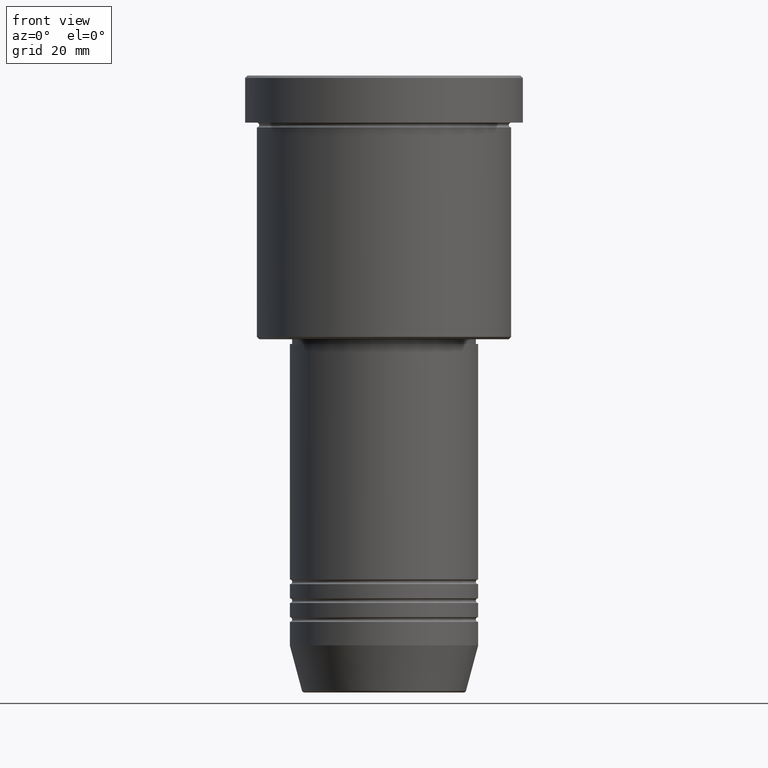
[diagram: clean part render]
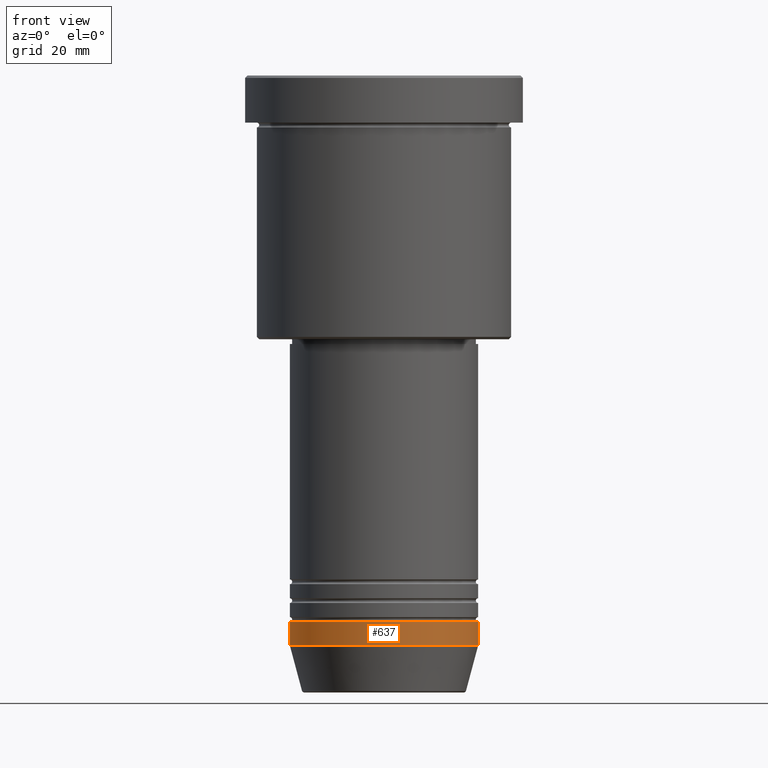
[diagram: same view with one face highlighted and labeled with its STEP entity id]
A machine part, front view. The second image highlights one B-rep face of the part: STEP entity #637.
In plain terms, the highlighted cylindrical surface (partial cylindrical patch) has radius 20 mm, axis along (-0, -0, 1).
Its self-contained STEP definition (entity closure, byte-faithful):
#18 = AXIS2_PLACEMENT_3D ( 'NONE', #717, #1182, #899 ) ;
#28 = EDGE_CURVE ( 'NONE', #321, #861, #110, .T. ) ;
#100 = CYLINDRICAL_SURFACE ( 'NONE', #814, 20.00000000000000000 ) ;
#106 = CARTESIAN_POINT ( 'NONE',  ( 20.00000000000000000, 0.000000000000000000, 0.000000000000000000 ) ) ;
#107 = CARTESIAN_POINT ( 'NONE',  ( -20.00000000000000000, 2.449293598294706513E-15, 0.000000000000000000 ) ) ;
#110 = CIRCLE ( 'NONE', #904, 20.00000000000000000 ) ;
#134 = EDGE_CURVE ( 'NONE', #671, #861, #301, .T. ) ;
#202 = CARTESIAN_POINT ( 'NONE',  ( 0.000000000000000000, 0.000000000000000000, -115.9999999999999858 ) ) ;
#223 = DIRECTION ( 'NONE',  ( -0.000000000000000000, -0.000000000000000000, 1.000000000000000000 ) ) ;
#301 = LINE ( 'NONE', #106, #926 ) ;
#321 = VERTEX_POINT ( 'NONE', #1175 ) ;
#355 = EDGE_CURVE ( 'NONE', #757, #671, #770, .T. ) ;
#465 = EDGE_CURVE ( 'NONE', #757, #321, #819, .T. ) ;
#470 = CARTESIAN_POINT ( 'NONE',  ( 20.00000000000000000, 0.000000000000000000, -121.0000000000000000 ) ) ;
#531 = CARTESIAN_POINT ( 'NONE',  ( -20.00000000000000000, 2.449293598294706513E-15, -121.0000000000000000 ) ) ;
#574 = DIRECTION ( 'NONE',  ( 1.000000000000000000, 0.000000000000000000, 0.000000000000000000 ) ) ;
#610 = ORIENTED_EDGE ( 'NONE', *, *, #134, .T. ) ;
#635 = ORIENTED_EDGE ( 'NONE', *, *, #465, .F. ) ;
#637 = ADVANCED_FACE ( 'NONE', ( #1002 ), #100, .T. ) ;
#667 = CARTESIAN_POINT ( 'NONE',  ( 20.00000000000000000, 0.000000000000000000, -115.9999999999999858 ) ) ;
#671 = VERTEX_POINT ( 'NONE', #470 ) ;
#717 = CARTESIAN_POINT ( 'NONE',  ( 0.000000000000000000, 0.000000000000000000, -121.0000000000000000 ) ) ;
#732 = CARTESIAN_POINT ( 'NONE',  ( 0.000000000000000000, 0.000000000000000000, 0.000000000000000000 ) ) ;
#741 = ORIENTED_EDGE ( 'NONE', *, *, #355, .T. ) ;
#757 = VERTEX_POINT ( 'NONE', #531 ) ;
#770 = CIRCLE ( 'NONE', #18, 20.00000000000000000 ) ;
#814 = AXIS2_PLACEMENT_3D ( 'NONE', #732, #990, #1097 ) ;
#817 = DIRECTION ( 'NONE',  ( -0.000000000000000000, -0.000000000000000000, 1.000000000000000000 ) ) ;
#819 = LINE ( 'NONE', #107, #1107 ) ;
#861 = VERTEX_POINT ( 'NONE', #667 ) ;
#898 = EDGE_LOOP ( 'NONE', ( #635, #741, #610, #1093 ) ) ;
#899 = DIRECTION ( 'NONE',  ( 1.000000000000000000, 0.000000000000000000, 0.000000000000000000 ) ) ;
#904 = AXIS2_PLACEMENT_3D ( 'NONE', #202, #817, #574 ) ;
#926 = VECTOR ( 'NONE', #223, 1000.000000000000000 ) ;
#990 = DIRECTION ( 'NONE',  ( -0.000000000000000000, -0.000000000000000000, 1.000000000000000000 ) ) ;
#1002 = FACE_OUTER_BOUND ( 'NONE', #898, .T. ) ;
#1006 = DIRECTION ( 'NONE',  ( -0.000000000000000000, -0.000000000000000000, 1.000000000000000000 ) ) ;
#1093 = ORIENTED_EDGE ( 'NONE', *, *, #28, .F. ) ;
#1097 = DIRECTION ( 'NONE',  ( 1.000000000000000000, 0.000000000000000000, 0.000000000000000000 ) ) ;
#1107 = VECTOR ( 'NONE', #1006, 1000.000000000000000 ) ;
#1175 = CARTESIAN_POINT ( 'NONE',  ( -20.00000000000000000, 2.449293598294706513E-15, -115.9999999999999858 ) ) ;
#1182 = DIRECTION ( 'NONE',  ( -0.000000000000000000, -0.000000000000000000, 1.000000000000000000 ) ) ;